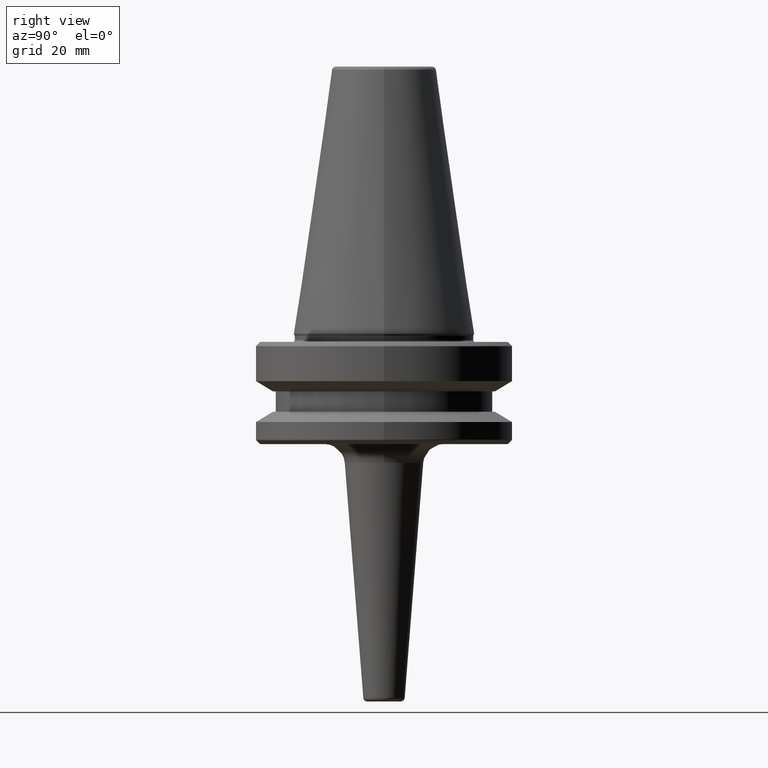
[diagram: clean part render]
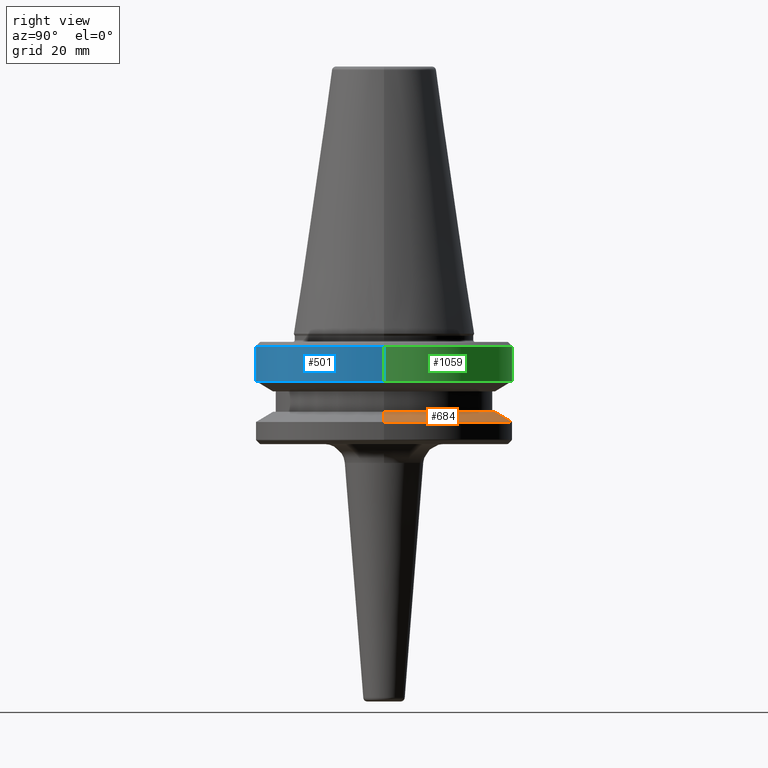
[diagram: same view with three faces highlighted in distinct colors, each labeled with its STEP entity id]
A machine part, right view with three faces highlighted in distinct colors.
Their STEP definitions:

[orange] entity #684 — the highlighted conical surface has half-angle 60 deg.
#6 = CARTESIAN_POINT ( 'NONE',  ( 27.16962701892216700, 3.327319676275047600E-015, -19.10000000000000500 ) ) ;
#25 = DIRECTION ( 'NONE',  ( -0.0000000000000000000, -0.0000000000000000000, 1.000000000000000000 ) ) ;
#40 = CARTESIAN_POINT ( 'NONE',  ( 0.0000000000000000000, 0.0000000000000000000, -19.10000000000000500 ) ) ;
#42 = CARTESIAN_POINT ( 'NONE',  ( -27.16962701892216700, 0.0000000000000000000, -19.10000000000000500 ) ) ;
#113 = VECTOR ( 'NONE', #756, 1000.000000000000000 ) ;
#152 = DIRECTION ( 'NONE',  ( 0.0000000000000000000, 0.0000000000000000000, -1.000000000000000000 ) ) ;
#228 = DIRECTION ( 'NONE',  ( -0.0000000000000000000, -0.0000000000000000000, 1.000000000000000000 ) ) ;
#234 = CARTESIAN_POINT ( 'NONE',  ( -31.50000000000000000, 3.857637417314162700E-015, -21.60014200631675500 ) ) ;
#259 = AXIS2_PLACEMENT_3D ( 'NONE', #40, #152, #876 ) ;
#260 = FACE_OUTER_BOUND ( 'NONE', #278, .T. ) ;
#278 = EDGE_LOOP ( 'NONE', ( #290, #723, #1102, #754 ) ) ;
#290 = ORIENTED_EDGE ( 'NONE', *, *, #1149, .F. ) ;
#333 = CARTESIAN_POINT ( 'NONE',  ( -27.16962701892216700, 0.0000000000000000000, -19.10000000000000500 ) ) ;
#354 = CARTESIAN_POINT ( 'NONE',  ( 31.50000000000000000, 0.0000000000000000000, -21.60014200631675500 ) ) ;
#361 = EDGE_CURVE ( 'NONE', #833, #1111, #815, .T. ) ;
#365 = LINE ( 'NONE', #6, #113 ) ;
#465 = VERTEX_POINT ( 'NONE', #354 ) ;
#488 = CARTESIAN_POINT ( 'NONE',  ( 27.16962701892216700, 3.592478546794605500E-015, -19.10000000000000500 ) ) ;
#536 = VERTEX_POINT ( 'NONE', #488 ) ;
#562 = EDGE_CURVE ( 'NONE', #536, #465, #365, .T. ) ;
#591 = CARTESIAN_POINT ( 'NONE',  ( 0.0000000000000000000, 0.0000000000000000000, -19.10000000000000500 ) ) ;
#598 = VECTOR ( 'NONE', #890, 1000.000000000000000 ) ;
#684 = ADVANCED_FACE ( 'NONE', ( #260 ), #1181, .T. ) ;
#685 = DIRECTION ( 'NONE',  ( 1.000000000000000000, 0.0000000000000000000, 0.0000000000000000000 ) ) ;
#723 = ORIENTED_EDGE ( 'NONE', *, *, #562, .T. ) ;
#754 = ORIENTED_EDGE ( 'NONE', *, *, #361, .F. ) ;
#756 = DIRECTION ( 'NONE',  ( 0.8660254037844403700, 1.060575238724909000E-016, -0.4999999999999970000 ) ) ;
#759 = CARTESIAN_POINT ( 'NONE',  ( 0.0000000000000000000, 0.0000000000000000000, -21.60014200631675500 ) ) ;
#815 = LINE ( 'NONE', #42, #598 ) ;
#833 = VERTEX_POINT ( 'NONE', #333 ) ;
#859 = DIRECTION ( 'NONE',  ( 1.000000000000000000, 0.0000000000000000000, 0.0000000000000000000 ) ) ;
#876 = DIRECTION ( 'NONE',  ( -1.000000000000000000, 0.0000000000000000000, 0.0000000000000000000 ) ) ;
#890 = DIRECTION ( 'NONE',  ( -0.8660254037844403700, 0.0000000000000000000, -0.4999999999999970000 ) ) ;
#933 = CIRCLE ( 'NONE', #961, 31.50000000000000000 ) ;
#961 = AXIS2_PLACEMENT_3D ( 'NONE', #759, #228, #859 ) ;
#1000 = AXIS2_PLACEMENT_3D ( 'NONE', #591, #25, #685 ) ;
#1036 = EDGE_CURVE ( 'NONE', #465, #1111, #933, .T. ) ;
#1047 = CIRCLE ( 'NONE', #1000, 27.16962701892216700 ) ;
#1102 = ORIENTED_EDGE ( 'NONE', *, *, #1036, .T. ) ;
#1111 = VERTEX_POINT ( 'NONE', #234 ) ;
#1149 = EDGE_CURVE ( 'NONE', #536, #833, #1047, .T. ) ;
#1181 = CONICAL_SURFACE ( 'NONE', #259, 27.16962701892216700, 1.047197551196601200 ) ;

[blue] entity #501 — the highlighted cylindrical surface (partial cylindrical patch) has radius 31.5 mm, axis along (-0, -0, 1).
#4 = CIRCLE ( 'NONE', #808, 31.50000000000000000 ) ;
#19 = CARTESIAN_POINT ( 'NONE',  ( -31.50000000000000700, 3.857637417314163500E-015, -3.165685424949243700 ) ) ;
#53 = ORIENTED_EDGE ( 'NONE', *, *, #378, .T. ) ;
#88 = CARTESIAN_POINT ( 'NONE',  ( 31.50000000000000000, 0.0000000000000000000, -11.59985799368323700 ) ) ;
#91 = ORIENTED_EDGE ( 'NONE', *, *, #303, .F. ) ;
#99 = ORIENTED_EDGE ( 'NONE', *, *, #131, .F. ) ;
#131 = EDGE_CURVE ( 'NONE', #1108, #437, #546, .T. ) ;
#145 = LINE ( 'NONE', #1014, #842 ) ;
#182 = DIRECTION ( 'NONE',  ( -0.0000000000000000000, -0.0000000000000000000, 1.000000000000000000 ) ) ;
#194 = CYLINDRICAL_SURFACE ( 'NONE', #273, 31.50000000000000000 ) ;
#237 = CARTESIAN_POINT ( 'NONE',  ( 0.0000000000000000000, 0.0000000000000000000, -3.165685424949243700 ) ) ;
#273 = AXIS2_PLACEMENT_3D ( 'NONE', #1190, #182, #705 ) ;
#275 = VERTEX_POINT ( 'NONE', #649 ) ;
#303 = EDGE_CURVE ( 'NONE', #275, #1108, #145, .T. ) ;
#317 = CARTESIAN_POINT ( 'NONE',  ( 31.50000000000000000, 0.0000000000000000000, 69.75694866325665100 ) ) ;
#378 = EDGE_CURVE ( 'NONE', #718, #437, #998, .T. ) ;
#396 = EDGE_LOOP ( 'NONE', ( #91, #1117, #53, #99 ) ) ;
#434 = CARTESIAN_POINT ( 'NONE',  ( 0.0000000000000000000, 0.0000000000000000000, -11.59985799368323700 ) ) ;
#437 = VERTEX_POINT ( 'NONE', #1064 ) ;
#501 = ADVANCED_FACE ( 'NONE', ( #663 ), #194, .T. ) ;
#512 = DIRECTION ( 'NONE',  ( 1.000000000000000000, 0.0000000000000000000, 0.0000000000000000000 ) ) ;
#546 = CIRCLE ( 'NONE', #1221, 31.50000000000000700 ) ;
#629 = DIRECTION ( 'NONE',  ( -0.0000000000000000000, -0.0000000000000000000, 1.000000000000000000 ) ) ;
#638 = DIRECTION ( 'NONE',  ( -0.0000000000000000000, -0.0000000000000000000, 1.000000000000000000 ) ) ;
#649 = CARTESIAN_POINT ( 'NONE',  ( -31.50000000000000000, 3.857637417314162700E-015, -11.59985799368323700 ) ) ;
#663 = FACE_OUTER_BOUND ( 'NONE', #396, .T. ) ;
#673 = EDGE_CURVE ( 'NONE', #275, #718, #4, .T. ) ;
#705 = DIRECTION ( 'NONE',  ( 1.000000000000000000, 0.0000000000000000000, 0.0000000000000000000 ) ) ;
#718 = VERTEX_POINT ( 'NONE', #88 ) ;
#742 = VECTOR ( 'NONE', #629, 1000.000000000000000 ) ;
#808 = AXIS2_PLACEMENT_3D ( 'NONE', #434, #1067, #512 ) ;
#842 = VECTOR ( 'NONE', #638, 1000.000000000000000 ) ;
#954 = DIRECTION ( 'NONE',  ( 1.000000000000000000, 0.0000000000000000000, 0.0000000000000000000 ) ) ;
#998 = LINE ( 'NONE', #317, #742 ) ;
#1014 = CARTESIAN_POINT ( 'NONE',  ( -31.50000000000000000, 3.857637417314162700E-015, 69.75694866325665100 ) ) ;
#1064 = CARTESIAN_POINT ( 'NONE',  ( 31.50000000000000700, 0.0000000000000000000, -3.165685424949243700 ) ) ;
#1067 = DIRECTION ( 'NONE',  ( -0.0000000000000000000, -0.0000000000000000000, 1.000000000000000000 ) ) ;
#1108 = VERTEX_POINT ( 'NONE', #19 ) ;
#1117 = ORIENTED_EDGE ( 'NONE', *, *, #673, .T. ) ;
#1137 = DIRECTION ( 'NONE',  ( -0.0000000000000000000, -0.0000000000000000000, 1.000000000000000000 ) ) ;
#1190 = CARTESIAN_POINT ( 'NONE',  ( 0.0000000000000000000, 0.0000000000000000000, 69.75694866325665100 ) ) ;
#1221 = AXIS2_PLACEMENT_3D ( 'NONE', #237, #1137, #954 ) ;

[green] entity #1059 — the highlighted cylindrical surface (partial cylindrical patch) has radius 31.5 mm, axis along (-0, -0, 1).
#19 = CARTESIAN_POINT ( 'NONE',  ( -31.50000000000000700, 3.857637417314163500E-015, -3.165685424949243700 ) ) ;
#88 = CARTESIAN_POINT ( 'NONE',  ( 31.50000000000000000, 0.0000000000000000000, -11.59985799368323700 ) ) ;
#125 = DIRECTION ( 'NONE',  ( 1.000000000000000000, 0.0000000000000000000, 0.0000000000000000000 ) ) ;
#133 = DIRECTION ( 'NONE',  ( -0.0000000000000000000, -0.0000000000000000000, 1.000000000000000000 ) ) ;
#145 = LINE ( 'NONE', #1014, #842 ) ;
#247 = AXIS2_PLACEMENT_3D ( 'NONE', #929, #1212, #740 ) ;
#255 = EDGE_CURVE ( 'NONE', #718, #275, #648, .T. ) ;
#275 = VERTEX_POINT ( 'NONE', #649 ) ;
#281 = AXIS2_PLACEMENT_3D ( 'NONE', #677, #133, #771 ) ;
#303 = EDGE_CURVE ( 'NONE', #275, #1108, #145, .T. ) ;
#315 = CARTESIAN_POINT ( 'NONE',  ( 0.0000000000000000000, 0.0000000000000000000, 69.75694866325665100 ) ) ;
#317 = CARTESIAN_POINT ( 'NONE',  ( 31.50000000000000000, 0.0000000000000000000, 69.75694866325665100 ) ) ;
#328 = ORIENTED_EDGE ( 'NONE', *, *, #255, .T. ) ;
#378 = EDGE_CURVE ( 'NONE', #718, #437, #998, .T. ) ;
#402 = CYLINDRICAL_SURFACE ( 'NONE', #417, 31.50000000000000000 ) ;
#411 = DIRECTION ( 'NONE',  ( -0.0000000000000000000, -0.0000000000000000000, 1.000000000000000000 ) ) ;
#417 = AXIS2_PLACEMENT_3D ( 'NONE', #315, #411, #125 ) ;
#437 = VERTEX_POINT ( 'NONE', #1064 ) ;
#547 = ORIENTED_EDGE ( 'NONE', *, *, #608, .F. ) ;
#608 = EDGE_CURVE ( 'NONE', #437, #1108, #1040, .T. ) ;
#629 = DIRECTION ( 'NONE',  ( -0.0000000000000000000, -0.0000000000000000000, 1.000000000000000000 ) ) ;
#638 = DIRECTION ( 'NONE',  ( -0.0000000000000000000, -0.0000000000000000000, 1.000000000000000000 ) ) ;
#648 = CIRCLE ( 'NONE', #247, 31.50000000000000000 ) ;
#649 = CARTESIAN_POINT ( 'NONE',  ( -31.50000000000000000, 3.857637417314162700E-015, -11.59985799368323700 ) ) ;
#677 = CARTESIAN_POINT ( 'NONE',  ( 0.0000000000000000000, 0.0000000000000000000, -3.165685424949243700 ) ) ;
#718 = VERTEX_POINT ( 'NONE', #88 ) ;
#740 = DIRECTION ( 'NONE',  ( 1.000000000000000000, 0.0000000000000000000, 0.0000000000000000000 ) ) ;
#742 = VECTOR ( 'NONE', #629, 1000.000000000000000 ) ;
#771 = DIRECTION ( 'NONE',  ( 1.000000000000000000, 0.0000000000000000000, 0.0000000000000000000 ) ) ;
#842 = VECTOR ( 'NONE', #638, 1000.000000000000000 ) ;
#919 = ORIENTED_EDGE ( 'NONE', *, *, #303, .T. ) ;
#929 = CARTESIAN_POINT ( 'NONE',  ( 0.0000000000000000000, 0.0000000000000000000, -11.59985799368323700 ) ) ;
#937 = ORIENTED_EDGE ( 'NONE', *, *, #378, .F. ) ;
#998 = LINE ( 'NONE', #317, #742 ) ;
#1007 = FACE_OUTER_BOUND ( 'NONE', #1072, .T. ) ;
#1014 = CARTESIAN_POINT ( 'NONE',  ( -31.50000000000000000, 3.857637417314162700E-015, 69.75694866325665100 ) ) ;
#1040 = CIRCLE ( 'NONE', #281, 31.50000000000000700 ) ;
#1059 = ADVANCED_FACE ( 'NONE', ( #1007 ), #402, .T. ) ;
#1064 = CARTESIAN_POINT ( 'NONE',  ( 31.50000000000000700, 0.0000000000000000000, -3.165685424949243700 ) ) ;
#1072 = EDGE_LOOP ( 'NONE', ( #328, #919, #547, #937 ) ) ;
#1108 = VERTEX_POINT ( 'NONE', #19 ) ;
#1212 = DIRECTION ( 'NONE',  ( -0.0000000000000000000, -0.0000000000000000000, 1.000000000000000000 ) ) ;